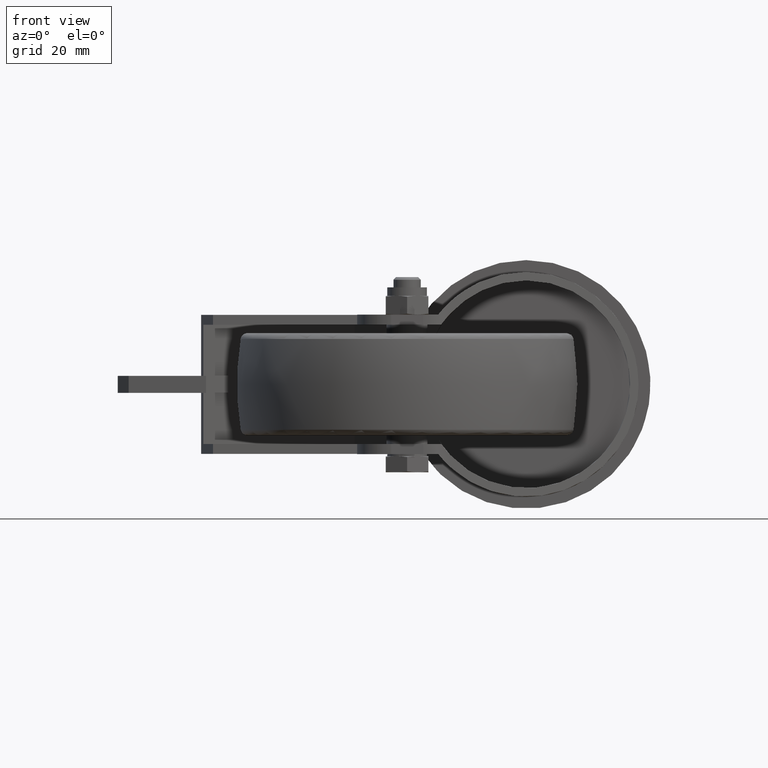
[diagram: clean part render]
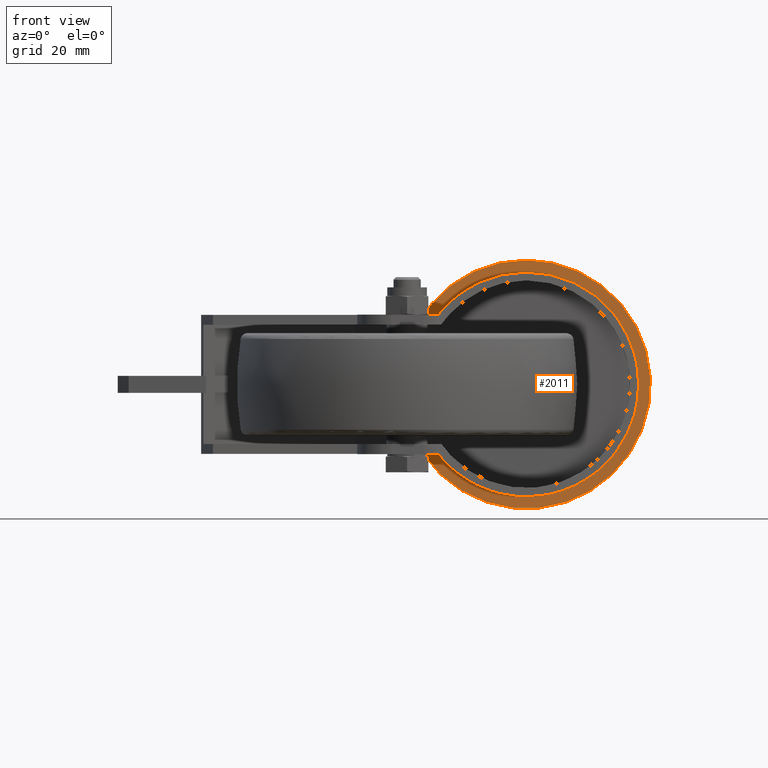
[diagram: same view with one face highlighted and labeled with its STEP entity id]
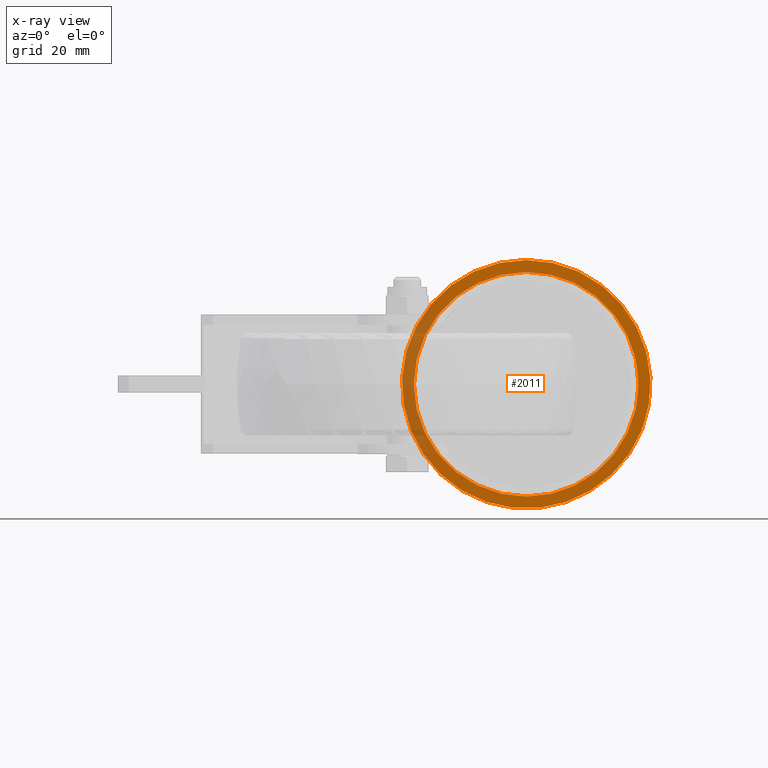
[diagram: x-ray of the same camera — body ghosted, the highlighted face saturated]
A machine part, front view. The second image highlights one B-rep face of the part: STEP entity #2011.
The next image is the same camera in x-ray: the body ghosted, the highlighted face saturated — about 21% of this face is hidden behind the body in this view.
In plain terms, the highlighted planar face has unit normal (0, 1, 0).
Its self-contained STEP definition (entity closure, byte-faithful):
#158=FACE_BOUND('',#398,.T.);
#186=PLANE('',#2282);
#263=FACE_OUTER_BOUND('',#397,.T.);
#397=EDGE_LOOP('',(#1504));
#398=EDGE_LOOP('',(#1505,#1506));
#516=CIRCLE('',#2228,33.);
#529=CIRCLE('',#2258,33.);
#541=CIRCLE('',#2281,36.5);
#894=VERTEX_POINT('',#3099);
#895=VERTEX_POINT('',#3101);
#956=VERTEX_POINT('',#3295);
#1080=EDGE_CURVE('',#895,#894,#516,.F.);
#1143=EDGE_CURVE('',#894,#895,#529,.F.);
#1164=EDGE_CURVE('',#956,#956,#541,.T.);
#1504=ORIENTED_EDGE('',*,*,#1164,.T.);
#1505=ORIENTED_EDGE('',*,*,#1080,.F.);
#1506=ORIENTED_EDGE('',*,*,#1143,.F.);
#2011=ADVANCED_FACE('',(#263,#158),#186,.F.);
#2228=AXIS2_PLACEMENT_3D('',#3103,#2479,#2480);
#2258=AXIS2_PLACEMENT_3D('',#3253,#2583,#2584);
#2281=AXIS2_PLACEMENT_3D('',#3296,#2636,#2637);
#2282=AXIS2_PLACEMENT_3D('',#3298,#2639,#2640);
#2479=DIRECTION('center_axis',(0.,1.,0.));
#2480=DIRECTION('ref_axis',(0.,0.,1.));
#2583=DIRECTION('center_axis',(0.,1.,0.));
#2584=DIRECTION('ref_axis',(0.,0.,1.));
#2636=DIRECTION('center_axis',(0.,-1.,0.));
#2637=DIRECTION('ref_axis',(0.,0.,-1.));
#2639=DIRECTION('center_axis',(0.,1.,0.));
#2640=DIRECTION('ref_axis',(0.,0.,1.));
#3099=CARTESIAN_POINT('',(35.,66.2,33.));
#3101=CARTESIAN_POINT('',(68.,66.2,0.));
#3103=CARTESIAN_POINT('Origin',(35.,66.2,0.));
#3253=CARTESIAN_POINT('Origin',(35.,66.2,0.));
#3295=CARTESIAN_POINT('',(35.,66.2,36.5));
#3296=CARTESIAN_POINT('Origin',(35.,66.2,0.));
#3298=CARTESIAN_POINT('Origin',(71.5,66.2,0.));